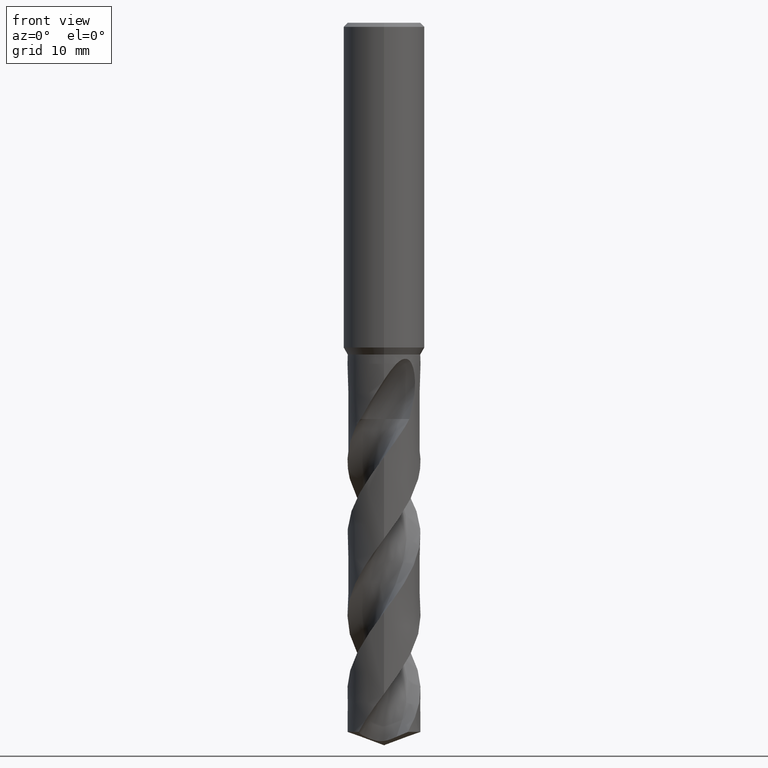
[diagram: clean part render]
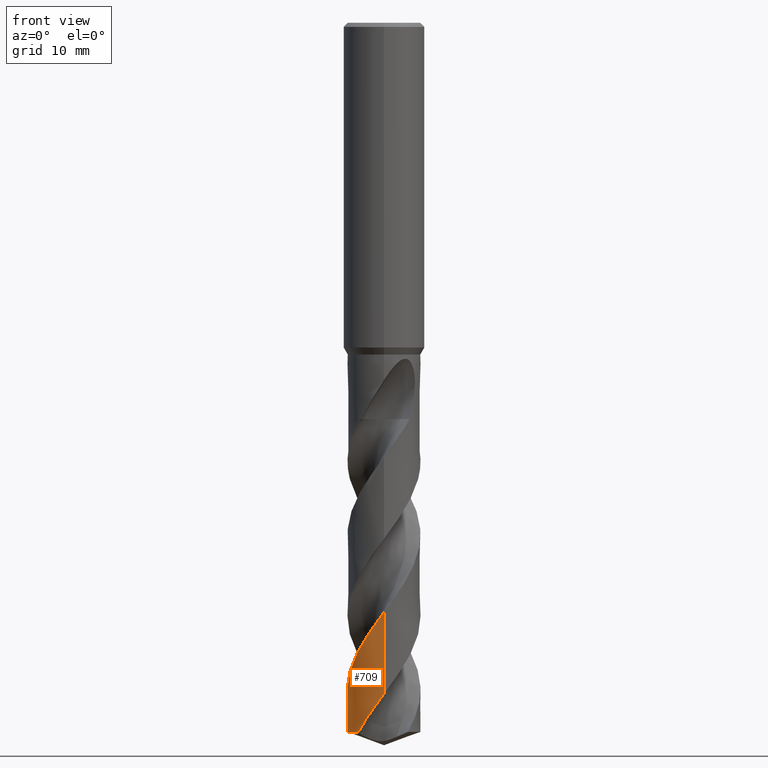
[diagram: same view with one face highlighted and labeled with its STEP entity id]
A machine part, front view. The second image highlights one B-rep face of the part: STEP entity #709.
In plain terms, the highlighted conical surface has half-angle 0 deg.
Its self-contained STEP definition (entity closure, byte-faithful):
#275=EDGE_CURVE('',#491,#447,#771,.T.);
#317=EDGE_CURVE('',#377,#491,#815,.T.);
#321=EDGE_CURVE('',#497,#447,#819,.T.);
#377=VERTEX_POINT('',#879);
#447=VERTEX_POINT('',#954);
#491=VERTEX_POINT('',#1003);
#497=VERTEX_POINT('',#1009);
#699=EDGE_CURVE('',#497,#377,#1236,.T.);
#709=ADVANCED_FACE('',(#1246),#1247,.T.);
#771=B_SPLINE_CURVE_WITH_KNOTS('',3,(#1395,#1396,#1397,#1398,#1399,#1400,#1401,#1402,#1403,#1404,#1405,#1406,#1407,#1408,#1409,#1410,#1411,#1412,#1413,#1414,#1415,#1416,#1417,#1418,#1419,#1420,#1421,#1422,#1423,#1424,#1425,#1426,#1427,#1428,#1429,#1430,#1431,#1432,#1433,#1434,#1435,#1436,#1437,#1438,#1439,#1440,#1441,#1442,#1443,#1444,#1445,#1446,#1447,#1448,#1449,#1450,#1451,#1452,#1453,#1454,#1455,#1456,#1457,#1458,#1459,#1460,#1461,#1462,#1463,#1464,#1465,#1466,#1467,#1468,#1469,#1470,#1471,#1472,#1473,#1474,#1475,#1476,#1477,#1478,#1479,#1480,#1481,#1482,#1483,#1484,#1485,#1486),.UNSPECIFIED.,.F.,.F.,(4,2,2,2,2,2,2,2,2,2,2,2,2,2,2,2,2,2,2,2,2,2,2,2,2,2,2,2,2,2,2,2,2,2,2,2,2,2,2,2,2,2,2,2,2,4),(0.0,0.18683790359587,0.303060575358205,0.370177943652661,0.861059292407231,1.0336613293908,1.144436130255,1.2486872481506,1.38874266630015,1.54454257304688,1.58485242873205,2.1698954438549,2.55907528347273,2.95156308593388,3.37161300508622,4.52186148246892,5.05269924747359,7.48727282725072,8.10399743339253,9.34060582031127,9.48730899730632,11.0891194292907,13.5788627031115,14.8125527251756,16.0436996368139,18.6294357483051,19.0542806023093,20.6879571243659,21.9317965502293,21.9807798994464,24.8028794454602,25.2510841381525,26.8041715479037,29.2919290876659,30.5258848129155,31.7529386297897,33.6201044852787,34.8491749314263,37.431729547501,37.8536049763399,39.4823315072267,41.629333827577,43.2294519417304,44.4325255172341,46.2472505502495,48.0718266755914),.UNSPECIFIED.);
#815=LINE('',#1676,#1677);
#819=CIRCLE('',#1682,4.5);
#879=CARTESIAN_POINT('',(-4.1656437967118E-015,-4.49998967546559,-82.6787048212013));
#954=CARTESIAN_POINT('',(-2.95363779304499,3.39499982142803,-87.3621339458021));
#1003=CARTESIAN_POINT('',(-1.05702068724905E-015,-4.49996747261341,-72.6070172730487));
#1009=CARTESIAN_POINT('',(-3.13168728307312,-3.2314911048985,-87.3621339458021));
#1236=B_SPLINE_CURVE_WITH_KNOTS('',3,(#4975,#4976,#4977,#4978,#4979,#4980,#4981,#4982,#4983,#4984,#4985,#4986,#4987,#4988,#4989,#4990,#4991,#4992,#4993,#4994,#4995,#4996,#4997,#4998,#4999,#5000,#5001,#5002,#5003,#5004,#5005,#5006,#5007,#5008,#5009,#5010,#5011,#5012,#5013,#5014,#5015,#5016,#5017,#5018,#5019,#5020,#5021,#5022,#5023,#5024,#5025,#5026,#5027,#5028,#5029,#5030,#5031,#5032,#5033,#5034,#5035,#5036,#5037,#5038,#5039,#5040,#5041,#5042,#5043,#5044,#5045,#5046,#5047,#5048,#5049,#5050,#5051,#5052,#5053,#5054),.UNSPECIFIED.,.F.,.F.,(4,2,2,2,2,2,2,2,2,2,2,2,2,2,2,2,2,2,2,2,2,2,2,2,2,2,2,2,2,2,2,2,2,2,2,2,2,2,2,4),(0.0,2.33680212910897,3.27924067887444,5.4592230345403,6.51468087450437,7.75993383269143,10.2223819571482,10.8330408138003,13.2978420873042,13.8876874891027,16.3592074409962,17.349163024776,19.5602745229972,20.1418048250435,22.6210733348974,23.4968128668138,25.9745633385095,26.5889144253962,29.0682132855279,29.6639600579411,32.1502943909303,33.248890918656,35.42230125904,35.9611128423146,38.376432469333,39.6141700968301,40.127823779556,40.6099819134643,42.407537256508,43.3447997838244,43.8793749484293,45.7265513681427,46.9465694555488,48.2985215131928,48.9744437533264,49.4647785574207,49.904773406731,50.4698778533234,51.6695420671085,53.4365331377016),.UNSPECIFIED.);
#1246=FACE_OUTER_BOUND('',#5101,.T.);
#1247=CONICAL_SURFACE('',#5102,4.49995,2.20448182881086E-006);
#1395=CARTESIAN_POINT('',(-3.12778793643585,3.23514724931657,-48.809));
#1396=CARTESIAN_POINT('',(-3.10234241230073,3.25974851338234,-48.8602446530444));
#1397=CARTESIAN_POINT('',(-3.07653912192927,3.28411598617549,-48.9114458344227));
#1398=CARTESIAN_POINT('',(-3.03398033542783,3.32335597496742,-48.9943801691706));
#1399=CARTESIAN_POINT('',(-3.01751085060052,3.33831798367657,-49.0261203188842));
#1400=CARTESIAN_POINT('',(-2.99124463757365,3.36182427072306,-49.076141171942));
#1401=CARTESIAN_POINT('',(-2.98157551341833,3.37040296022369,-49.0944295868799));
#1402=CARTESIAN_POINT('',(-2.90068589815738,3.44154702731484,-49.2463568399934));
#1403=CARTESIAN_POINT('',(-2.82772616152931,3.50181627341295,-49.3764496731637));
#1404=CARTESIAN_POINT('',(-2.72342923033344,3.58236770600933,-49.5536717763989));
#1405=CARTESIAN_POINT('',(-2.69597691172005,3.60307552425301,-49.599572852649));
#1406=CARTESIAN_POINT('',(-2.65029510809127,3.63671278882903,-49.6748955758792));
#1407=CARTESIAN_POINT('',(-2.63231258702841,3.64975049493423,-49.7042845693022));
#1408=CARTESIAN_POINT('',(-2.59714782310832,3.67484910160833,-49.7613124751894));
#1409=CARTESIAN_POINT('',(-2.57999781226208,3.68691014689667,-49.7889250000194));
#1410=CARTESIAN_POINT('',(-2.53956443354151,3.71492443083201,-49.8536308174126));
#1411=CARTESIAN_POINT('',(-2.51622719378134,3.73077114375857,-49.8906754415509));
#1412=CARTESIAN_POINT('',(-2.4666067681486,3.76378722329975,-49.9689853235328));
#1413=CARTESIAN_POINT('',(-2.44032896177776,3.78087731938001,-50.0101912737705));
#1414=CARTESIAN_POINT('',(-2.40707712762518,3.80201331580773,-50.0621631205709));
#1415=CARTESIAN_POINT('',(-2.40030885819585,3.80628994494193,-50.0727352217059));
#1416=CARTESIAN_POINT('',(-2.29391635802218,3.87311591370691,-50.2389035487542));
#1417=CARTESIAN_POINT('',(-2.19266494945719,3.9312693868656,-50.3963700191282));
#1418=CARTESIAN_POINT('',(-2.02201022190424,4.0207800931677,-50.6579561891188));
#1419=CARTESIAN_POINT('',(-1.9529976408044,4.05474758461695,-50.7627539184552));
#1420=CARTESIAN_POINT('',(-1.81283564170355,4.11933364242733,-50.9729718410298));
#1421=CARTESIAN_POINT('',(-1.74152600440663,4.14998903565729,-51.0786114782123));
#1422=CARTESIAN_POINT('',(-1.59209338964234,4.20968444515237,-51.2968461371374));
#1423=CARTESIAN_POINT('',(-1.51419199593283,4.23832924907109,-51.408799569282));
#1424=CARTESIAN_POINT('',(-1.21933659653469,4.33756213953638,-51.8284392771185));
#1425=CARTESIAN_POINT('',(-0.998312203470115,4.39368353176344,-52.1342607248324));
#1426=CARTESIAN_POINT('',(-0.670699929667548,4.45089878420606,-52.5839118505092));
#1427=CARTESIAN_POINT('',(-0.56673476256252,4.46532384528898,-52.7261188433654));
#1428=CARTESIAN_POINT('',(0.0158593566014373,4.52551586542829,-53.5196625584769));
#1429=CARTESIAN_POINT('',(0.499315127278846,4.4979838398345,-54.1646465473792));
#1430=CARTESIAN_POINT('',(1.08860454669283,4.36797144679173,-54.9805246186605));
#1431=CARTESIAN_POINT('',(1.20658027979862,4.33686466775295,-55.1454224296842));
#1432=CARTESIAN_POINT('',(1.55683757899981,4.22911500182635,-55.6410268865573));
#1433=CARTESIAN_POINT('',(1.78435609493581,4.13827295236342,-55.9710169332416));
#1434=CARTESIAN_POINT('',(2.02940858502102,4.01643220847865,-56.3408102490221));
#1435=CARTESIAN_POINT('',(2.05526586295113,4.00326238467319,-56.3800192543787));
#1436=CARTESIAN_POINT('',(2.36194350630933,3.84330855619634,-56.8475809040067));
#1437=CARTESIAN_POINT('',(2.62668260222406,3.66747604444923,-57.2757420245328));
#1438=CARTESIAN_POINT('',(3.25007789231719,3.15104322114891,-58.3700082825769));
#1439=CARTESIAN_POINT('',(3.57511033457675,2.7767376310157,-59.0302286434329));
#1440=CARTESIAN_POINT('',(3.96073664821482,2.14976783948637,-60.0264826331519));
#1441=CARTESIAN_POINT('',(4.0714889833312,1.93185777441371,-60.355952693659));
#1442=CARTESIAN_POINT('',(4.2564462157419,1.48038173816258,-61.0149840046461));
#1443=CARTESIAN_POINT('',(4.33031295220701,1.24786419378132,-61.3430649871292));
#1444=CARTESIAN_POINT('',(4.49985094227359,0.512237703931023,-62.3642128600196));
#1445=CARTESIAN_POINT('',(4.52897578723537,-0.00241840789649028,-63.051440829232));
#1446=CARTESIAN_POINT('',(4.46127844489325,-0.594646182103736,-63.8564810470677));
#1447=CARTESIAN_POINT('',(4.44938890987139,-0.677893792995244,-63.9700389476567));
#1448=CARTESIAN_POINT('',(4.3805352380679,-1.07932261725527,-64.5208244066011));
#1449=CARTESIAN_POINT('',(4.29170119064676,-1.39120129412134,-64.9575883471686));
#1450=CARTESIAN_POINT('',(4.07766262936973,-1.91907921244736,-65.7274695379777));
#1451=CARTESIAN_POINT('',(3.96655753013111,-2.13931391151557,-66.0592844478257));
#1452=CARTESIAN_POINT('',(3.83290145888576,-2.35765661126346,-66.4050958174115));
#1453=CARTESIAN_POINT('',(3.82781152138669,-2.36591154726916,-66.4181975435707));
#1454=CARTESIAN_POINT('',(3.52795217461566,-2.84872821486921,-67.1861264725194));
#1455=CARTESIAN_POINT('',(3.14712120059219,-3.26462536762721,-67.936918975901));
#1456=CARTESIAN_POINT('',(2.62884158444171,-3.65331454758851,-68.8117669480431));
#1457=CARTESIAN_POINT('',(2.55627937069931,-3.70444923681183,-68.9315900207931));
#1458=CARTESIAN_POINT('',(2.22579729709219,-3.92301107329704,-69.4672515078753));
#1459=CARTESIAN_POINT('',(1.95256845644276,-4.06591988853053,-69.8828299292249));
#1460=CARTESIAN_POINT('',(1.2093535757821,-4.36231586922043,-70.9645587041532));
#1461=CARTESIAN_POINT('',(0.725041770083323,-4.46837157989668,-71.6248842837038));
#1462=CARTESIAN_POINT('',(-0.0104272915693735,-4.50657537603774,-72.6215076190853));
#1463=CARTESIAN_POINT('',(-0.255050474242373,-4.49938143831887,-72.9512980105845));
#1464=CARTESIAN_POINT('',(-0.739645845688141,-4.44541948591604,-73.6098715099131));
#1465=CARTESIAN_POINT('',(-0.978543290623478,-4.39899747922616,-73.9372063860257));
#1466=CARTESIAN_POINT('',(-1.56836372434701,-4.23397917782504,-74.7658042780405));
#1467=CARTESIAN_POINT('',(-1.91089269757003,-4.09086205534607,-75.2646042925274));
#1468=CARTESIAN_POINT('',(-2.44364882964785,-3.78651249623113,-76.0933679048809));
#1469=CARTESIAN_POINT('',(-2.64485745440732,-3.6487984316127,-76.4212878548532));
#1470=CARTESIAN_POINT('',(-3.23108546525324,-3.17353845786324,-77.4421892566622));
#1471=CARTESIAN_POINT('',(-3.57078756394346,-2.78592024738515,-78.1292916760643));
#1472=CARTESIAN_POINT('',(-3.88170339289574,-2.27798257559527,-78.9335620250523));
#1473=CARTESIAN_POINT('',(-3.92334285906946,-2.20549286847971,-79.046448501752));
#1474=CARTESIAN_POINT('',(-4.11577428801733,-1.84779005379825,-79.5957226188071));
#1475=CARTESIAN_POINT('',(-4.23766630888224,-1.54796997910848,-80.0316743227031));
#1476=CARTESIAN_POINT('',(-4.44345601546818,-0.8286077591632,-81.04302976595));
#1477=CARTESIAN_POINT('',(-4.5018337335531,-0.405151729452918,-81.614246663171));
#1478=CARTESIAN_POINT('',(-4.49853578134804,0.336880451762036,-82.6183263289882));
#1479=CARTESIAN_POINT('',(-4.46366228385649,0.6529293680291,-83.0457214980072));
#1480=CARTESIAN_POINT('',(-4.34471970530647,1.19593328507147,-83.7962806612961));
#1481=CARTESIAN_POINT('',(-4.27527148843984,1.42433322627444,-84.1175951220404));
#1482=CARTESIAN_POINT('',(-4.05672364981276,1.98041295886397,-84.9265110627169));
#1483=CARTESIAN_POINT('',(-3.8856152210784,2.29813637602568,-85.4118136863882));
#1484=CARTESIAN_POINT('',(-3.46992935423713,2.88798469074985,-86.3866803014667));
#1485=CARTESIAN_POINT('',(-3.22660888872388,3.15751450903315,-86.8733754637238));
#1486=CARTESIAN_POINT('',(-2.95363779304501,3.39499982142802,-87.3621339458021));
#1676=CARTESIAN_POINT('',(5.50491744894932E-016,-4.49995,-64.6810669729011));
#1677=VECTOR('',#5293,1.0);
#1682=AXIS2_PLACEMENT_3D('',#5294,#5295,#5296);
#4975=CARTESIAN_POINT('',(-3.13168728307313,-3.23149110489847,-87.3621339458021));
#4976=CARTESIAN_POINT('',(-2.79986246655599,-3.55306566713435,-86.7350611147313));
#4977=CARTESIAN_POINT('',(-2.41931807136374,-3.82268708352842,-86.1100701296137));
#4978=CARTESIAN_POINT('',(-1.83521490318923,-4.11303866146682,-85.2321782883056));
#4979=CARTESIAN_POINT('',(-1.66238672643526,-4.18586752701925,-84.980573078044));
#4980=CARTESIAN_POINT('',(-1.0767758910533,-4.39068346058886,-84.1441869429795));
#4981=CARTESIAN_POINT('',(-0.649912593156497,-4.47380378378019,-83.5561029921032));
#4982=CARTESIAN_POINT('',(-0.00820594335859307,-4.50486006235474,-82.6893896842287));
#4983=CARTESIAN_POINT('',(0.201551859395831,-4.50035239897883,-82.4076885535386));
#4984=CARTESIAN_POINT('',(0.656338493267588,-4.45872265536625,-81.7913076068468));
#4985=CARTESIAN_POINT('',(0.899759727909462,-4.41598605868359,-81.4559596912196));
#4986=CARTESIAN_POINT('',(1.60900420617697,-4.23060356570481,-80.4626725958122));
#4987=CARTESIAN_POINT('',(2.05647265345239,-4.03201261376533,-79.8159416004618));
#4988=CARTESIAN_POINT('',(2.56422064246406,-3.69988403780334,-78.9928933270896));
#4989=CARTESIAN_POINT('',(2.66228396728069,-3.62996305221645,-78.8288730072809));
#4990=CARTESIAN_POINT('',(3.14245993197919,-3.25759389917791,-78.0047503083298));
#4991=CARTESIAN_POINT('',(3.47612276311307,-2.89885542264653,-77.3573854200472));
#4992=CARTESIAN_POINT('',(3.81044268746321,-2.39664010792831,-76.5396648853197));
#4993=CARTESIAN_POINT('',(3.87107700662628,-2.29740408074124,-76.3813128017781));
#4994=CARTESIAN_POINT('',(4.16557103945988,-1.77063976705101,-75.5622535818993));
#4995=CARTESIAN_POINT('',(4.33269860503441,-1.30963320068644,-74.9141332192812));
#4996=CARTESIAN_POINT('',(4.45870752892896,-0.638585720457889,-73.989530891933));
#4997=CARTESIAN_POINT('',(4.48219751154566,-0.444767125691329,-73.7238506769823));
#4998=CARTESIAN_POINT('',(4.5172513771739,0.186109210999759,-72.8685584158562));
#4999=CARTESIAN_POINT('',(4.47793965024903,0.622739679819713,-72.2872016436771));
#5000=CARTESIAN_POINT('',(4.3498645617691,1.15823578961959,-71.5411540388604));
#5001=CARTESIAN_POINT('',(4.31900559072666,1.26844007559974,-71.3853522646004));
#5002=CARTESIAN_POINT('',(4.13486308967079,1.84121509419625,-70.5684913559287));
#5003=CARTESIAN_POINT('',(3.9113523625305,2.27793273361661,-69.9199799030472));
#5004=CARTESIAN_POINT('',(3.51955756022668,2.8092784945475,-69.0263259088699));
#5005=CARTESIAN_POINT('',(3.40962147820031,2.94172133793468,-68.792020286025));
#5006=CARTESIAN_POINT('',(2.96041433069383,3.4238286958288,-67.8989219777058));
#5007=CARTESIAN_POINT('',(2.57323997192767,3.72350406430365,-67.2520853163403));
#5008=CARTESIAN_POINT('',(2.03985329574824,4.01286921696057,-66.4289341975398));
#5009=CARTESIAN_POINT('',(1.93176151747013,4.06601026780428,-66.2649185261708));
#5010=CARTESIAN_POINT('',(1.3761241610763,4.31195864088622,-65.4408821666907));
#5011=CARTESIAN_POINT('',(0.902047794887706,4.43540226865888,-64.7935875376313));
#5012=CARTESIAN_POINT('',(0.300932586266201,4.49139796043046,-63.9752858705775));
#5013=CARTESIAN_POINT('',(0.184344415297354,4.49768616769331,-63.8162958364489));
#5014=CARTESIAN_POINT('',(-0.419597722003774,4.5067588779907,-62.9965448987817));
#5015=CARTESIAN_POINT('',(-0.904715611935219,4.43493953695607,-62.3483403358814));
#5016=CARTESIAN_POINT('',(-1.57434901872603,4.22105631508305,-61.3963752196446));
#5017=CARTESIAN_POINT('',(-1.77463918796129,4.14085808168044,-61.1029718124997));
#5018=CARTESIAN_POINT('',(-2.3526013555818,3.85966336441614,-60.2337326683595));
#5019=CARTESIAN_POINT('',(-2.70761979869309,3.61935011533647,-59.6649371569323));
#5020=CARTESIAN_POINT('',(-3.10136216637176,3.26222941209874,-58.9439874085501));
#5021=CARTESIAN_POINT('',(-3.17689066124188,3.18871549713084,-58.8004019559114));
#5022=CARTESIAN_POINT('',(-3.57657420914357,2.77141348637392,-58.0156712492933));
#5023=CARTESIAN_POINT('',(-3.84789584878266,2.38063246130944,-57.3858962152384));
#5024=CARTESIAN_POINT('',(-4.15893889408506,1.73537271111702,-56.4180829487213));
#5025=CARTESIAN_POINT('',(-4.24637478634398,1.50880064381814,-56.0887648579445));
#5026=CARTESIAN_POINT('',(-4.34368801736214,1.17977584311203,-55.6246663064232));
#5027=CARTESIAN_POINT('',(-4.36898742268578,1.08233482933922,-55.4886814145431));
#5028=CARTESIAN_POINT('',(-4.41166416110175,0.891913353924181,-55.2248479962655));
#5029=CARTESIAN_POINT('',(-4.42941527560923,0.799099540604124,-55.0970194263374));
#5030=CARTESIAN_POINT('',(-4.49945639738542,0.358075873489744,-54.4930561263145));
#5031=CARTESIAN_POINT('',(-4.51371182901481,0.00478684639450966,-54.0190391709624));
#5032=CARTESIAN_POINT('',(-4.47238740307571,-0.529964591694633,-53.2948562139244));
#5033=CARTESIAN_POINT('',(-4.44703977480557,-0.711788546825658,-53.0474653130317));
#5034=CARTESIAN_POINT('',(-4.3901296919894,-0.993461706639181,-52.6567870282656));
#5035=CARTESIAN_POINT('',(-4.36604721815895,-1.09443730250362,-52.5147560745739));
#5036=CARTESIAN_POINT('',(-4.24279968463427,-1.54192302628225,-51.8835295949365));
#5037=CARTESIAN_POINT('',(-4.12650462795643,-1.80429687057606,-51.5071005788542));
#5038=CARTESIAN_POINT('',(-3.99194950767507,-2.08051816437917,-51.1029174702718));
#5039=CARTESIAN_POINT('',(-3.93470712623882,-2.18665177214611,-50.9420596015931));
#5040=CARTESIAN_POINT('',(-3.80743023350446,-2.40209205250394,-50.5979444039779));
#5041=CARTESIAN_POINT('',(-3.73739988717134,-2.50929104302828,-50.4160548071858));
#5042=CARTESIAN_POINT('',(-3.62930256052059,-2.66106780747601,-50.1370178129093));
#5043=CARTESIAN_POINT('',(-3.60651631430297,-2.69151781105095,-50.0769849604618));
#5044=CARTESIAN_POINT('',(-3.56013542912321,-2.75240426658002,-49.9616313655587));
#5045=CARTESIAN_POINT('',(-3.53999291938334,-2.77827791522591,-49.9136236063034));
#5046=CARTESIAN_POINT('',(-3.50040168380363,-2.82795790984955,-49.8233069758375));
#5047=CARTESIAN_POINT('',(-3.48112778255354,-2.85166103650283,-49.7809964560704));
#5048=CARTESIAN_POINT('',(-3.43573578995514,-2.90629782328638,-49.6851620033897));
#5049=CARTESIAN_POINT('',(-3.40928085134258,-2.9373099176569,-49.6319780403548));
#5050=CARTESIAN_POINT('',(-3.32349041317262,-3.03504110962034,-49.4678078498903));
#5051=CARTESIAN_POINT('',(-3.26094814653178,-3.10235402369362,-49.3596572921212));
#5052=CARTESIAN_POINT('',(-3.09441593189277,-3.27011524922245,-49.0988921664458));
#5053=CARTESIAN_POINT('',(-2.98599314281817,-3.3699772282562,-48.9513064665904));
#5054=CARTESIAN_POINT('',(-2.86743909114319,-3.4680005995758,-48.809));
#5101=EDGE_LOOP('',(#5805,#5806,#5807,#5808));
#5102=AXIS2_PLACEMENT_3D('',#5809,#5810,#5811);
#5293=DIRECTION('',(-2.69962245444557E-022,2.20448182880907E-006,0.99999999999757));
#5294=CARTESIAN_POINT('',(0.0,0.0,-87.3621339458021));
#5295=DIRECTION('',(0.0,0.0,-1.0));
#5296=DIRECTION('',(0.0,1.0,0.0));
#5805=ORIENTED_EDGE('',*,*,#317,.T.);
#5806=ORIENTED_EDGE('',*,*,#275,.T.);
#5807=ORIENTED_EDGE('',*,*,#321,.F.);
#5808=ORIENTED_EDGE('',*,*,#699,.T.);
#5809=CARTESIAN_POINT('',(0.0,0.0,-64.6810669729011));
#5810=DIRECTION('',(0.0,-0.0,-1.0));
#5811=DIRECTION('',(0.0,1.0,0.0));